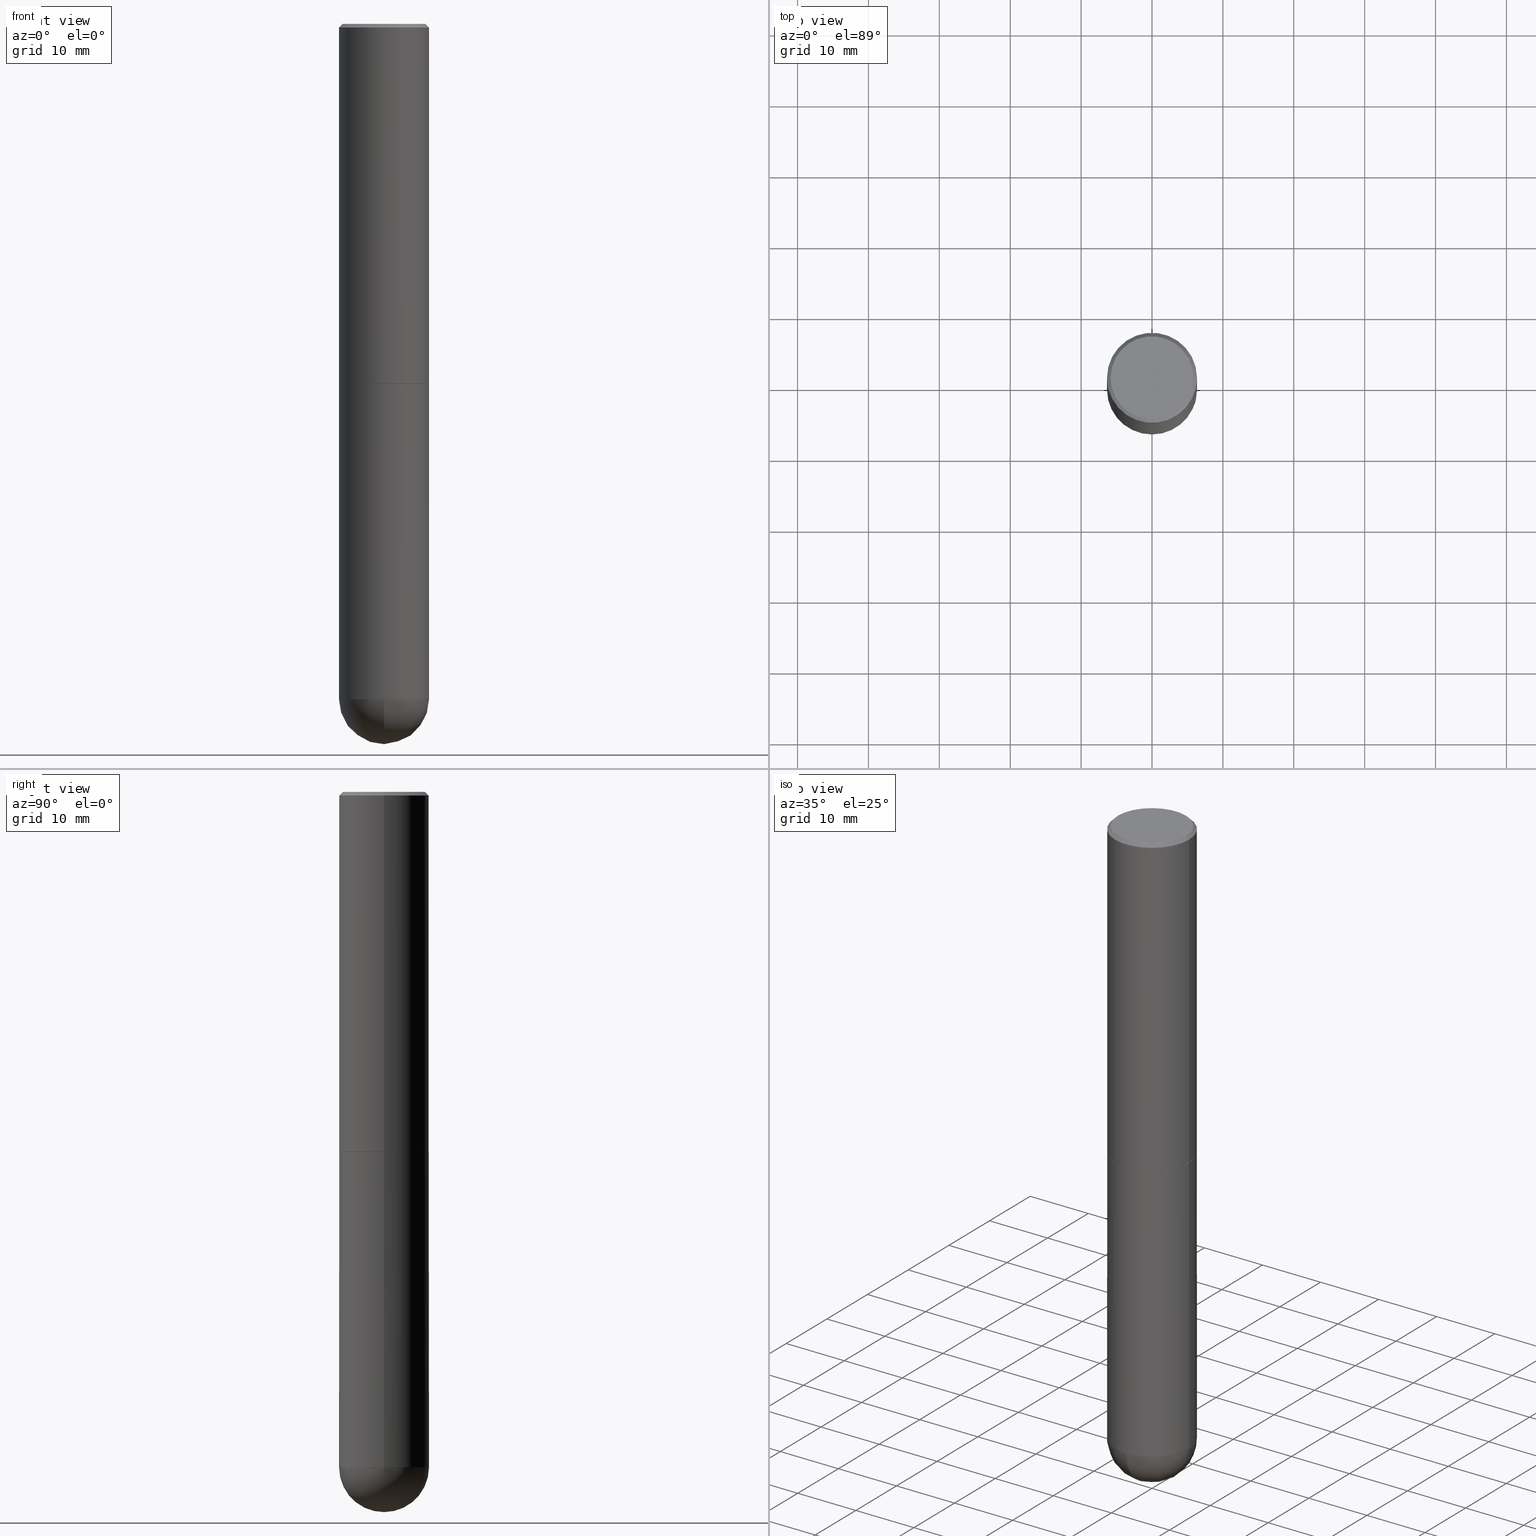
[diagram: canonical four-view strip — front | top / right | iso, engineering-drawing reading convention]
A machine part, canonical four-view strip (front | top / right | iso — engineering-drawing reading convention). The complete STEP part file that produces these views, byte-faithful:
ISO-10303-21;
HEADER;
FILE_DESCRIPTION (( 'STEP AP203' ),
    '1' );
FILE_NAME ('34982.STEP',
    '2024-02-21T18:41:01',
    ( '' ),
    ( '' ),
    'SwSTEP 2.0',
    'SolidWorks 2023',
    '' );
FILE_SCHEMA (( 'CONFIG_CONTROL_DESIGN' ));
ENDSEC;

DATA;
#1 = DIRECTION ( 'NONE',  ( 1.000000000000000000, 0.000000000000000000, 0.000000000000000000 ) ) ;
#2 = PLANE ( 'NONE',  #248 ) ;
#3 = VERTEX_POINT ( 'NONE', #73 ) ;
#4 = DIRECTION ( 'NONE',  ( 1.000000000000000000, -6.982962677686262766E-15, 0.000000000000000000 ) ) ;
#5 = AXIS2_PLACEMENT_3D ( 'NONE', #49, #144, #264 ) ;
#6 = CIRCLE ( 'NONE', #279, 0.2299999999999999267 ) ;
#7 = SPHERICAL_SURFACE ( 'NONE', #397, 0.2500000000000001110 ) ;
#8 = DIRECTION ( 'NONE',  ( -1.000000000000000000, 6.982962677686266711E-15, 0.000000000000000000 ) ) ;
#9 = ORIENTED_EDGE ( 'NONE', *, *, #116, .T. ) ;
#10 = FACE_OUTER_BOUND ( 'NONE', #189, .T. ) ;
#11 = ORIENTED_EDGE ( 'NONE', *, *, #102, .F. ) ;
#12 = VECTOR ( 'NONE', #84, 39.37007874015748143 ) ;
#13 = DIRECTION ( 'NONE',  ( 1.000000000000000000, -6.982962677686267499E-15, 4.876176775795936353E-29 ) ) ;
#14 = DIRECTION ( 'NONE',  ( 6.982962677686266711E-15, 1.000000000000000000, 0.000000000000000000 ) ) ;
#15 = PERSON_AND_ORGANIZATION ( #230, #252 ) ;
#16 = AXIS2_PLACEMENT_3D ( 'NONE', #198, #130, #254 ) ;
#17 = UNCERTAINTY_MEASURE_WITH_UNIT (LENGTH_MEASURE( 1.000000000000000082E-05 ), #183, 'distance_accuracy_value', 'NONE');
#18 = CARTESIAN_POINT ( 'NONE',  ( 0.000000000000000000, 0.000000000000000000, 0.000000000000000000 ) ) ;
#19 = EDGE_LOOP ( 'NONE', ( #222, #368, #40, #385 ) ) ;
#20 = CC_DESIGN_PERSON_AND_ORGANIZATION_ASSIGNMENT ( #262, #236, ( #56 ) ) ;
#21 = EDGE_CURVE ( 'NONE', #152, #410, #231, .T. ) ;
#22 = AXIS2_PLACEMENT_3D ( 'NONE', #327, #392, #47 ) ;
#23 = PRODUCT_DEFINITION_FORMATION_WITH_SPECIFIED_SOURCE ( 'ANY', '', #87, .NOT_KNOWN. ) ;
#24 = ORIENTED_EDGE ( 'NONE', *, *, #253, .T. ) ;
#25 = FACE_OUTER_BOUND ( 'NONE', #381, .T. ) ;
#26 = EDGE_CURVE ( 'NONE', #75, #152, #296, .T. ) ;
#27 = CARTESIAN_POINT ( 'NONE',  ( 4.890937612370273194E-29, -6.982962677686291165E-15, -2.000000000000000000 ) ) ;
#28 = DIRECTION ( 'NONE',  ( 1.000000000000000000, -6.982962677686266711E-15, 0.000000000000000000 ) ) ;
#29 = DIRECTION ( 'NONE',  ( -2.445468806185136597E-29, 3.491481338843145583E-15, 1.000000000000000000 ) ) ;
#30 = APPLICATION_PROTOCOL_DEFINITION ( 'international standard', 'config_control_design', 1994, #382 ) ;
#31 = CYLINDRICAL_SURFACE ( 'NONE', #5, 0.2500000000000000000 ) ;
#32 = FACE_OUTER_BOUND ( 'NONE', #281, .T. ) ;
#33 = ORIENTED_EDGE ( 'NONE', *, *, #146, .F. ) ;
#34 = ADVANCED_FACE ( 'NONE', ( #109 ), #77, .F. ) ;
#35 = FACE_OUTER_BOUND ( 'NONE', #374, .T. ) ;
#36 = CARTESIAN_POINT ( 'NONE',  ( 4.890937612370272633E-29, -6.982962677686290376E-15, -1.999999999999999778 ) ) ;
#37 = SHAPE_DEFINITION_REPRESENTATION ( #89, #286 ) ;
#38 = DIRECTION ( 'NONE',  ( 1.000000000000000000, -6.982962677686266711E-15, 0.000000000000000000 ) ) ;
#39 = COORDINATED_UNIVERSAL_TIME_OFFSET ( 5, 0, .BEHIND. ) ;
#40 = ORIENTED_EDGE ( 'NONE', *, *, #273, .T. ) ;
#41 = DIRECTION ( 'NONE',  ( 2.438088387897960049E-29, -3.491481338843145188E-15, -1.000000000000000000 ) ) ;
#42 = DIRECTION ( 'NONE',  ( 1.000000000000000000, -6.982962677686266711E-15, 0.000000000000000000 ) ) ;
#43 = DIRECTION ( 'NONE',  ( -2.445468806185136597E-29, 3.491481338843145583E-15, 1.000000000000000000 ) ) ;
#44 = MECHANICAL_CONTEXT ( 'NONE', #124, 'mechanical' ) ;
#45 = DIRECTION ( 'NONE',  ( -2.445468806185136597E-29, 3.491481338843145583E-15, 1.000000000000000000 ) ) ;
#46 = CARTESIAN_POINT ( 'NONE',  ( 8.839388245280375991E-29, -1.356723738880184771E-14, -3.750000000000000000 ) ) ;
#47 = DIRECTION ( 'NONE',  ( 1.000000000000000000, -6.982962677686262766E-15, 0.000000000000000000 ) ) ;
#48 = VERTEX_POINT ( 'NONE', #167 ) ;
#49 = CARTESIAN_POINT ( 'NONE',  ( 0.000000000000000000, 0.000000000000000000, 0.000000000000000000 ) ) ;
#50 = EDGE_LOOP ( 'NONE', ( #138, #347, #105, #303 ) ) ;
#51 = DIRECTION ( 'NONE',  ( 1.000000000000000000, -6.982962677686265922E-15, 4.883557194083112340E-29 ) ) ;
#52 = CONICAL_SURFACE ( 'NONE', #101, 0.2489999999999999991, 0.7853981633976873100 ) ;
#53 = AXIS2_PLACEMENT_3D ( 'NONE', #70, #29, #243 ) ;
#54 = DIRECTION ( 'NONE',  ( 0.7071067811867165487, -2.468850131084027659E-15, 0.7071067811863784858 ) ) ;
#55 = AXIS2_PLACEMENT_3D ( 'NONE', #140, #43, #4 ) ;
#56 = SECURITY_CLASSIFICATION ( '', '', #228 ) ;
#57 = ORIENTED_EDGE ( 'NONE', *, *, #253, .F. ) ;
#58 = LINE ( 'NONE', #117, #131 ) ;
#59 = PERSON_AND_ORGANIZATION ( #230, #252 ) ;
#60 = DIRECTION ( 'NONE',  ( 6.982962677686265922E-15, 1.000000000000000000, -4.370956789862818783E-15 ) ) ;
#61 = CC_DESIGN_SECURITY_CLASSIFICATION ( #56, ( #23 ) ) ;
#62 = PERSON_AND_ORGANIZATION_ROLE ( 'creator' ) ;
#63 = ORIENTED_EDGE ( 'NONE', *, *, #356, .T. ) ;
#64 = COORDINATED_UNIVERSAL_TIME_OFFSET ( 5, 0, .BEHIND. ) ;
#65 = ADVANCED_FACE ( 'NONE', ( #108 ), #370, .T. ) ;
#66 = APPROVAL_STATUS ( 'not_yet_approved' ) ;
#67 = DIRECTION ( 'NONE',  ( -2.445468806185136597E-29, 3.491481338843145583E-15, 1.000000000000000000 ) ) ;
#68 = ORIENTED_EDGE ( 'NONE', *, *, #205, .T. ) ;
#69 = AXIS2_PLACEMENT_3D ( 'NONE', #132, #256, #351 ) ;
#70 = CARTESIAN_POINT ( 'NONE',  ( 4.888492143564087591E-29, -6.979471196347447369E-15, -1.998999999999999888 ) ) ;
#71 = LINE ( 'NONE', #163, #210 ) ;
#72 =( NAMED_UNIT ( * ) PLANE_ANGLE_UNIT ( ) SI_UNIT ( $, .RADIAN. ) );
#73 = CARTESIAN_POINT ( 'NONE',  ( -0.2500000000000000000, -8.261652009773794219E-15, -2.000000000000000000 ) ) ;
#74 = CARTESIAN_POINT ( 'NONE',  ( 4.888492143564087591E-29, -6.979471196347447369E-15, -1.998999999999999888 ) ) ;
#75 = VERTEX_POINT ( 'NONE', #200 ) ;
#76 = DIRECTION ( 'NONE',  ( 1.000000000000000000, -6.982962677686262766E-15, 0.000000000000000000 ) ) ;
#77 = PLANE ( 'NONE',  #162 ) ;
#78 = AXIS2_PLACEMENT_3D ( 'NONE', #27, #411, #344 ) ;
#79 = VERTEX_POINT ( 'NONE', #164 ) ;
#80 = CARTESIAN_POINT ( 'NONE',  ( 0.2500000000000000000, -8.728703347107857054E-15, -2.000000000000000000 ) ) ;
#81 = CC_DESIGN_APPROVAL ( #114, ( #56 ) ) ;
#82 =( LENGTH_UNIT ( ) NAMED_UNIT ( * ) SI_UNIT ( $, .METRE. ) );
#83 = ORIENTED_EDGE ( 'NONE', *, *, #90, .T. ) ;
#84 = DIRECTION ( 'NONE',  ( -2.445468806185136877E-29, 3.491481338843145188E-15, 1.000000000000000000 ) ) ;
#85 = CIRCLE ( 'NONE', #22, 0.2500000000000000000 ) ;
#86 = APPROVAL_PERSON_ORGANIZATION ( #318, #180, #121 ) ;
#87 = PRODUCT ( '34982', '34982', '', ( #44 ) ) ;
#88 = FACE_OUTER_BOUND ( 'NONE', #294, .T. ) ;
#89 = PRODUCT_DEFINITION_SHAPE ( 'NONE', 'NONE',  #276 ) ;
#90 = EDGE_CURVE ( 'NONE', #352, #48, #313, .T. ) ;
#91 = COORDINATED_UNIVERSAL_TIME_OFFSET ( 5, 0, .BEHIND. ) ;
#92 =( GEOMETRIC_REPRESENTATION_CONTEXT ( 3 ) GLOBAL_UNCERTAINTY_ASSIGNED_CONTEXT ( ( #17 ) ) GLOBAL_UNIT_ASSIGNED_CONTEXT ( ( #183, #72, #257 ) ) REPRESENTATION_CONTEXT ( 'NONE', 'WORKASPACE' ) );
#93 = DIRECTION ( 'NONE',  ( 2.445468806185136597E-29, -3.491481338843145583E-15, -1.000000000000000000 ) ) ;
#94 = CC_DESIGN_PERSON_AND_ORGANIZATION_ASSIGNMENT ( #373, #197, ( #23 ) ) ;
#95 = CARTESIAN_POINT ( 'NONE',  ( 4.890937612370273194E-29, -6.982962677686291165E-15, -2.000000000000000000 ) ) ;
#96 = CYLINDRICAL_SURFACE ( 'NONE', #359, 0.2500000000000000000 ) ;
#97 = EDGE_LOOP ( 'NONE', ( #33, #217, #300, #388 ) ) ;
#98 = DIRECTION ( 'NONE',  ( 6.982962677686265922E-15, 1.000000000000000000, -4.370956789862818783E-15 ) ) ;
#99 = VECTOR ( 'NONE', #54, 39.37007874015748143 ) ;
#100 = ORIENTED_EDGE ( 'NONE', *, *, #204, .F. ) ;
#101 = AXIS2_PLACEMENT_3D ( 'NONE', #384, #325, #38 ) ;
#102 = EDGE_CURVE ( 'NONE', #213, #352, #244, .T. ) ;
#103 = CARTESIAN_POINT ( 'NONE',  ( 0.2299999999999999267, -1.681434332853598617E-15, 5.122214988121642930E-17 ) ) ;
#104 = CARTESIAN_POINT ( 'NONE',  ( 0.000000000000000000, 0.000000000000000000, 0.000000000000000000 ) ) ;
#105 = ORIENTED_EDGE ( 'NONE', *, *, #26, .T. ) ;
#106 = DIRECTION ( 'NONE',  ( -2.445468806185136597E-29, 3.491481338843145583E-15, 1.000000000000000000 ) ) ;
#107 = CC_DESIGN_PERSON_AND_ORGANIZATION_ASSIGNMENT ( #160, #379, ( #276 ) ) ;
#108 = FACE_OUTER_BOUND ( 'NONE', #97, .T. ) ;
#109 = FACE_OUTER_BOUND ( 'NONE', #211, .T. ) ;
#110 = DIRECTION ( 'NONE',  ( 0.7071067811865466846, -7.319954787623252890E-15, -0.7071067811865483499 ) ) ;
#111 = DIRECTION ( 'NONE',  ( -2.445468806185136597E-29, 3.491481338843145583E-15, 1.000000000000000000 ) ) ;
#112 = VERTEX_POINT ( 'NONE', #196 ) ;
#113 = LOCAL_TIME ( 13, 41, 1.000000000000000000, #407 ) ;
#114 = APPROVAL ( #147, 'UNSPECIFIED' ) ;
#115 = DIRECTION ( 'NONE',  ( 1.000000000000000000, -6.982962677686262766E-15, 0.000000000000000000 ) ) ;
#116 = EDGE_CURVE ( 'NONE', #112, #410, #71, .T. ) ;
#117 = CARTESIAN_POINT ( 'NONE',  ( -0.2500000000000000000, 1.675911042644703577E-15, -0.02000000000000005593 ) ) ;
#118 = CONICAL_SURFACE ( 'NONE', #274, 0.2489999999999999991, 0.7853981633976873100 ) ;
#119 = DIRECTION ( 'NONE',  ( -2.445468806185136597E-29, 3.491481338843145583E-15, 1.000000000000000000 ) ) ;
#120 = CARTESIAN_POINT ( 'NONE',  ( 0.2500000000000000000, -1.784954126219746189E-15, -0.02000000000000005593 ) ) ;
#121 = APPROVAL_ROLE ( '' ) ;
#122 = FACE_OUTER_BOUND ( 'NONE', #50, .T. ) ;
#123 = APPROVAL_PERSON_ORGANIZATION ( #15, #114, #148 ) ;
#124 = APPLICATION_CONTEXT ( 'configuration controlled 3d designs of mechanical parts and assemblies' ) ;
#125 = MANIFOLD_SOLID_BREP ( 'Body-Move/Copy2[2]', #145 ) ;
#126 = ORIENTED_EDGE ( 'NONE', *, *, #128, .F. ) ;
#127 = FACE_OUTER_BOUND ( 'NONE', #378, .T. ) ;
#128 = EDGE_CURVE ( 'NONE', #241, #112, #271, .T. ) ;
#129 = CALENDAR_DATE ( 2024, 21, 2 ) ;
#130 = DIRECTION ( 'NONE',  ( -2.445468806185136597E-29, 3.491481338843145583E-15, 1.000000000000000000 ) ) ;
#131 = VECTOR ( 'NONE', #350, 39.37007874015748143 ) ;
#132 = CARTESIAN_POINT ( 'NONE',  ( -1.252621697202263706E-45, 1.788411804456536750E-31, 5.122214988120493535E-17 ) ) ;
#133 = PERSON_AND_ORGANIZATION ( #230, #252 ) ;
#134 = ORIENTED_EDGE ( 'NONE', *, *, #339, .T. ) ;
#135 = DATE_AND_TIME ( #399, #113 ) ;
#136 = ORIENTED_EDGE ( 'NONE', *, *, #171, .F. ) ;
#137 = CARTESIAN_POINT ( 'NONE',  ( 0.2489999999999999991, -8.721720384430171040E-15, -1.999999999999999778 ) ) ;
#138 = ORIENTED_EDGE ( 'NONE', *, *, #116, .F. ) ;
#139 = VECTOR ( 'NONE', #314, 39.37007874015748143 ) ;
#140 = CARTESIAN_POINT ( 'NONE',  ( 9.170508023194262238E-29, -1.309305502066179741E-14, -3.750000000000000000 ) ) ;
#141 = VERTEX_POINT ( 'NONE', #412 ) ;
#142 = CARTESIAN_POINT ( 'NONE',  ( 0.2500000000000000000, -1.784954126219746189E-15, -0.02000000000000005593 ) ) ;
#143 = CARTESIAN_POINT ( 'NONE',  ( 4.890937612370273194E-29, -6.982962677686291165E-15, -2.000000000000000000 ) ) ;
#144 = DIRECTION ( 'NONE',  ( -2.445468806185136597E-29, 3.491481338843145583E-15, 1.000000000000000000 ) ) ;
#145 = CLOSED_SHELL ( 'NONE', ( #277, #330, #65, #389, #409, #151, #34, #247 ) ) ;
#146 = EDGE_CURVE ( 'NONE', #342, #141, #331, .T. ) ;
#147 = APPROVAL_STATUS ( 'not_yet_approved' ) ;
#148 = APPROVAL_ROLE ( '' ) ;
#149 = ADVANCED_FACE ( 'NONE', ( #261 ), #96, .T. ) ;
#150 = CIRCLE ( 'NONE', #78, 0.2500000000000000000 ) ;
#151 = ADVANCED_FACE ( 'NONE', ( #32 ), #52, .T. ) ;
#152 = VERTEX_POINT ( 'NONE', #120 ) ;
#153 = ORIENTED_EDGE ( 'NONE', *, *, #154, .F. ) ;
#154 = EDGE_CURVE ( 'NONE', #79, #213, #173, .T. ) ;
#155 = APPROVAL_ROLE ( '' ) ;
#156 = CARTESIAN_POINT ( 'NONE',  ( -1.776356839400160732E-15, -0.2500000000000133782, -3.749999999999999112 ) ) ;
#157 = AXIS2_PLACEMENT_3D ( 'NONE', #46, #270, #220 ) ;
#158 = DIRECTION ( 'NONE',  ( 1.000000000000000000, -6.982962677686267499E-15, 4.876176775795936353E-29 ) ) ;
#159 = APPROVAL ( #406, 'UNSPECIFIED' ) ;
#160 = PERSON_AND_ORGANIZATION ( #230, #252 ) ;
#161 = CARTESIAN_POINT ( 'NONE',  ( 4.890937612370272633E-29, -6.982962677686290376E-15, -1.999999999999999778 ) ) ;
#162 = AXIS2_PLACEMENT_3D ( 'NONE', #143, #291, #320 ) ;
#163 = CARTESIAN_POINT ( 'NONE',  ( -0.2500000000000001110, 1.776356839400251254E-15, -1.229733772563727146E-29 ) ) ;
#164 = CARTESIAN_POINT ( 'NONE',  ( -0.2500000000000000000, -8.261652009773795797E-15, -3.750000000000000000 ) ) ;
#165 = CARTESIAN_POINT ( 'NONE',  ( 1.606081415867840870E-15, 0.2299999999999999267, -7.774296329933208332E-16 ) ) ;
#166 = DIRECTION ( 'NONE',  ( -2.445468806185136597E-29, 3.491481338843145583E-15, 1.000000000000000000 ) ) ;
#167 = CARTESIAN_POINT ( 'NONE',  ( 1.745740669421657002E-15, 0.2499999999999867606, -3.750000000000001332 ) ) ;
#168 = CALENDAR_DATE ( 2024, 21, 2 ) ;
#169 = DIRECTION ( 'NONE',  ( 1.000000000000000000, -6.982962677686266711E-15, 0.000000000000000000 ) ) ;
#170 = DIRECTION ( 'NONE',  ( -1.000000000000000000, 6.982962677686265922E-15, -4.876176775795935793E-29 ) ) ;
#171 = EDGE_CURVE ( 'NONE', #258, #48, #393, .T. ) ;
#172 = LINE ( 'NONE', #395, #139 ) ;
#173 = CIRCLE ( 'NONE', #341, 0.2500000000000000000 ) ;
#174 = ORIENTED_EDGE ( 'NONE', *, *, #232, .T. ) ;
#175 = DIRECTION ( 'NONE',  ( -2.445468806185136597E-29, 3.491481338843145583E-15, 1.000000000000000000 ) ) ;
#176 = ORIENTED_EDGE ( 'NONE', *, *, #171, .T. ) ;
#177 = PLANE ( 'NONE',  #223 ) ;
#178 = AXIS2_PLACEMENT_3D ( 'NONE', #336, #45, #169 ) ;
#179 = LOCAL_TIME ( 13, 41, 1.000000000000000000, #91 ) ;
#180 = APPROVAL ( #66, 'UNSPECIFIED' ) ;
#181 = ADVANCED_FACE ( 'NONE', ( #25 ), #402, .T. ) ;
#182 = AXIS2_PLACEMENT_3D ( 'NONE', #95, #175, #324 ) ;
#183 =( CONVERSION_BASED_UNIT ( 'INCH', #216 ) LENGTH_UNIT ( ) NAMED_UNIT ( #226 ) );
#184 = ORIENTED_EDGE ( 'NONE', *, *, #366, .F. ) ;
#185 = EDGE_CURVE ( 'NONE', #323, #75, #284, .T. ) ;
#186 = DIRECTION ( 'NONE',  ( -1.000000000000000000, 6.982962677686266711E-15, 0.000000000000000000 ) ) ;
#187 = DATE_TIME_ROLE ( 'creation_date' ) ;
#188 = CARTESIAN_POINT ( 'NONE',  ( 0.2489999999999999991, -8.721720384430171040E-15, -1.999999999999999778 ) ) ;
#189 = EDGE_LOOP ( 'NONE', ( #63, #9, #245, #285 ) ) ;
#190 = CLOSED_SHELL ( 'NONE', ( #149, #332, #181, #319, #288 ) ) ;
#191 = CARTESIAN_POINT ( 'NONE',  ( 4.890937612370287172E-31, -6.982962677686310098E-17, -0.02000000000000005593 ) ) ;
#192 = ORIENTED_EDGE ( 'NONE', *, *, #362, .T. ) ;
#193 = CALENDAR_DATE ( 2024, 21, 2 ) ;
#194 = CC_DESIGN_DATE_AND_TIME_ASSIGNMENT ( #295, #355, ( #56 ) ) ;
#195 = PERSON_AND_ORGANIZATION_ROLE ( 'design_owner' ) ;
#196 = CARTESIAN_POINT ( 'NONE',  ( -0.2500000000000002220, -1.748293572161902502E-15, -1.998999999999999888 ) ) ;
#197 = PERSON_AND_ORGANIZATION_ROLE ( 'design_supplier' ) ;
#198 = CARTESIAN_POINT ( 'NONE',  ( 4.890937612370287172E-31, -6.982962677686310098E-17, -0.02000000000000005593 ) ) ;
#199 = VECTOR ( 'NONE', #380, 39.37007874015748143 ) ;
#200 = CARTESIAN_POINT ( 'NONE',  ( 0.2500000000000002776, -8.725211865769015625E-15, -1.998999999999999888 ) ) ;
#201 = ORIENTED_EDGE ( 'NONE', *, *, #401, .T. ) ;
#202 = APPROVAL_DATE_TIME ( #135, #114 ) ;
#203 = CARTESIAN_POINT ( 'NONE',  ( -0.2489999999999999991, -5.213711265643640920E-15, -1.999999999999999778 ) ) ;
#204 = EDGE_CURVE ( 'NONE', #79, #3, #282, .T. ) ;
#205 = EDGE_CURVE ( 'NONE', #375, #3, #150, .T. ) ;
#206 = DIRECTION ( 'NONE',  ( -2.445468806185136597E-29, 3.491481338843145583E-15, 1.000000000000000000 ) ) ;
#207 = APPLICATION_PROTOCOL_DEFINITION ( 'international standard', 'config_control_design', 1994, #124 ) ;
#208 = ORIENTED_EDGE ( 'NONE', *, *, #259, .F. ) ;
#209 = CARTESIAN_POINT ( 'NONE',  ( 9.461445025441403338E-29, -1.442479963852329389E-14, -4.000000000000000888 ) ) ;
#210 = VECTOR ( 'NONE', #334, 39.37007874015748143 ) ;
#211 = EDGE_LOOP ( 'NONE', ( #361, #57 ) ) ;
#212 = CARTESIAN_POINT ( 'NONE',  ( 9.170508023194262238E-29, -1.309305502066179741E-14, -3.750000000000000000 ) ) ;
#213 = VERTEX_POINT ( 'NONE', #156 ) ;
#214 = AXIS2_PLACEMENT_3D ( 'NONE', #221, #346, #60 ) ;
#215 = CIRCLE ( 'NONE', #53, 0.2500000000000002776 ) ;
#216 = LENGTH_MEASURE_WITH_UNIT ( LENGTH_MEASURE( 0.02539999999999999897 ), #82 );
#217 = ORIENTED_EDGE ( 'NONE', *, *, #304, .T. ) ;
#218 = CIRCLE ( 'NONE', #182, 0.2500000000000000000 ) ;
#219 = AXIS2_PLACEMENT_3D ( 'NONE', #18, #343, #158 ) ;
#220 = DIRECTION ( 'NONE',  ( -7.105427357601001859E-15, -1.000000000000000000, 0.000000000000000000 ) ) ;
#221 = CARTESIAN_POINT ( 'NONE',  ( 8.839388245280375991E-29, -1.356723738880184771E-14, -3.750000000000000000 ) ) ;
#222 = ORIENTED_EDGE ( 'NONE', *, *, #304, .F. ) ;
#223 = AXIS2_PLACEMENT_3D ( 'NONE', #165, #41, #170 ) ;
#224 = AXIS2_PLACEMENT_3D ( 'NONE', #191, #93, #186 ) ;
#225 = EDGE_CURVE ( 'NONE', #410, #152, #376, .T. ) ;
#226 = DIMENSIONAL_EXPONENTS ( 1.000000000000000000, 0.000000000000000000, 0.000000000000000000, 0.000000000000000000, 0.000000000000000000, 0.000000000000000000, 0.000000000000000000 ) ;
#227 = CARTESIAN_POINT ( 'NONE',  ( 0.000000000000000000, 0.000000000000000000, 0.000000000000000000 ) ) ;
#228 = SECURITY_CLASSIFICATION_LEVEL ( 'unclassified' ) ;
#229 = ORIENTED_EDGE ( 'NONE', *, *, #185, .T. ) ;
#230 = PERSON ( 'UNSPECIFIED', 'UNSPECIFIED', 'UNSPECIFIED', ('UNSPECIFIED'), ('UNSPECIFIED'), ('UNSPECIFIED') ) ;
#231 = CIRCLE ( 'NONE', #178, 0.2500000000000000000 ) ;
#232 = EDGE_CURVE ( 'NONE', #3, #375, #218, .T. ) ;
#233 = DESIGN_CONTEXT ( 'detailed design', #382, 'design' ) ;
#234 = CARTESIAN_POINT ( 'NONE',  ( 9.170508023194262238E-29, -1.309305502066179741E-14, -3.750000000000000000 ) ) ;
#235 = LOCAL_TIME ( 13, 41, 1.000000000000000000, #39 ) ;
#236 = PERSON_AND_ORGANIZATION_ROLE ( 'classification_officer' ) ;
#237 = CARTESIAN_POINT ( 'NONE',  ( 0.000000000000000000, 0.000000000000000000, 0.000000000000000000 ) ) ;
#238 = CARTESIAN_POINT ( 'NONE',  ( 4.890937612370287172E-31, -6.982962677686310098E-17, -0.02000000000000005593 ) ) ;
#239 = DIRECTION ( 'NONE',  ( 1.000000000000000000, -6.982962677686266711E-15, 0.000000000000000000 ) ) ;
#240 = LINE ( 'NONE', #142, #265 ) ;
#241 = VERTEX_POINT ( 'NONE', #357 ) ;
#242 = FACE_OUTER_BOUND ( 'NONE', #289, .T. ) ;
#243 = DIRECTION ( 'NONE',  ( 1.000000000000000000, -6.982962677686266711E-15, 0.000000000000000000 ) ) ;
#244 = CIRCLE ( 'NONE', #55, 0.2500000000000000000 ) ;
#245 = ORIENTED_EDGE ( 'NONE', *, *, #21, .F. ) ;
#246 = AXIS2_PLACEMENT_3D ( 'NONE', #36, #166, #387 ) ;
#247 = ADVANCED_FACE ( 'NONE', ( #35 ), #177, .F. ) ;
#248 = AXIS2_PLACEMENT_3D ( 'NONE', #363, #337, #302 ) ;
#249 = CC_DESIGN_APPROVAL ( #180, ( #276 ) ) ;
#250 = CC_DESIGN_PERSON_AND_ORGANIZATION_ASSIGNMENT ( #59, #62, ( #23 ) ) ;
#251 = CYLINDRICAL_SURFACE ( 'NONE', #219, 0.2500000000000001110 ) ;
#252 = ORGANIZATION ( 'UNSPECIFIED', 'UNSPECIFIED', '' ) ;
#253 = EDGE_CURVE ( 'NONE', #241, #323, #340, .T. ) ;
#254 = DIRECTION ( 'NONE',  ( 1.000000000000000000, -6.982962677686266711E-15, 0.000000000000000000 ) ) ;
#255 = AXIS2_PLACEMENT_3D ( 'NONE', #104, #321, #1 ) ;
#256 = DIRECTION ( 'NONE',  ( -2.445468806185136597E-29, 3.491481338843145583E-15, 1.000000000000000000 ) ) ;
#257 =( NAMED_UNIT ( * ) SI_UNIT ( $, .STERADIAN. ) SOLID_ANGLE_UNIT ( ) );
#258 = VERTEX_POINT ( 'NONE', #209 ) ;
#259 = EDGE_CURVE ( 'NONE', #258, #213, #307, .T. ) ;
#260 = FACE_OUTER_BOUND ( 'NONE', #312, .T. ) ;
#261 = FACE_OUTER_BOUND ( 'NONE', #283, .T. ) ;
#262 = PERSON_AND_ORGANIZATION ( #230, #252 ) ;
#263 = ORIENTED_EDGE ( 'NONE', *, *, #154, .T. ) ;
#264 = DIRECTION ( 'NONE',  ( 1.000000000000000000, -6.982962677686266711E-15, 4.876176775795935793E-29 ) ) ;
#265 = VECTOR ( 'NONE', #110, 39.37007874015748143 ) ;
#266 = LOCAL_TIME ( 13, 41, 1.000000000000000000, #301 ) ;
#267 = ORIENTED_EDGE ( 'NONE', *, *, #259, .T. ) ;
#268 = CARTESIAN_POINT ( 'NONE',  ( 4.890937612370272633E-29, -6.982962677686290376E-15, -1.999999999999999778 ) ) ;
#269 = CARTESIAN_POINT ( 'NONE',  ( 0.2500000000000001110, -1.745740669421567664E-15, 1.219044193948984649E-29 ) ) ;
#270 = DIRECTION ( 'NONE',  ( -1.000000000000000000, 7.105427357601001070E-15, -4.926315508542082329E-29 ) ) ;
#271 = LINE ( 'NONE', #203, #199 ) ;
#272 = ORIENTED_EDGE ( 'NONE', *, *, #102, .T. ) ;
#273 = EDGE_CURVE ( 'NONE', #141, #410, #58, .T. ) ;
#274 = AXIS2_PLACEMENT_3D ( 'NONE', #161, #287, #28 ) ;
#275 = CALENDAR_DATE ( 2024, 21, 2 ) ;
#276 = PRODUCT_DEFINITION ( 'UNKNOWN', '', #23, #233 ) ;
#277 = ADVANCED_FACE ( 'NONE', ( #127 ), #118, .T. ) ;
#278 = AXIS2_PLACEMENT_3D ( 'NONE', #338, #51, #14 ) ;
#279 = AXIS2_PLACEMENT_3D ( 'NONE', #367, #310, #309 ) ;
#280 = APPROVAL_DATE_TIME ( #316, #159 ) ;
#281 = EDGE_LOOP ( 'NONE', ( #126, #24, #229, #184 ) ) ;
#282 = LINE ( 'NONE', #369, #12 ) ;
#283 = EDGE_LOOP ( 'NONE', ( #292, #405, #335, #329, #83 ) ) ;
#284 = LINE ( 'NONE', #188, #99 ) ;
#285 = ORIENTED_EDGE ( 'NONE', *, *, #26, .F. ) ;
#286 = ADVANCED_BREP_SHAPE_REPRESENTATION ( '34982', ( #396, #125, #255 ), #92 ) ;
#287 = DIRECTION ( 'NONE',  ( -2.445468806185136597E-29, 3.491481338843145583E-15, 1.000000000000000000 ) ) ;
#288 = ADVANCED_FACE ( 'NONE', ( #88 ), #31, .T. ) ;
#289 = EDGE_LOOP ( 'NONE', ( #68, #174 ) ) ;
#290 = CIRCLE ( 'NONE', #246, 0.2489999999999999991 ) ;
#291 = DIRECTION ( 'NONE',  ( -2.438088387897960049E-29, 3.491481338843145188E-15, 1.000000000000000000 ) ) ;
#292 = ORIENTED_EDGE ( 'NONE', *, *, #299, .T. ) ;
#293 = DIRECTION ( 'NONE',  ( 2.445468806185136597E-29, -3.491481338843145583E-15, -1.000000000000000000 ) ) ;
#294 = EDGE_LOOP ( 'NONE', ( #100, #263, #272, #192, #404 ) ) ;
#295 = DATE_AND_TIME ( #168, #235 ) ;
#296 = LINE ( 'NONE', #269, #348 ) ;
#297 = CYLINDRICAL_SURFACE ( 'NONE', #398, 0.2500000000000001110 ) ;
#298 = ORIENTED_EDGE ( 'NONE', *, *, #90, .F. ) ;
#299 = EDGE_CURVE ( 'NONE', #48, #79, #85, .T. ) ;
#300 = ORIENTED_EDGE ( 'NONE', *, *, #21, .T. ) ;
#301 = COORDINATED_UNIVERSAL_TIME_OFFSET ( 5, 0, .BEHIND. ) ;
#302 = DIRECTION ( 'NONE',  ( -1.000000000000000000, 6.982962677686265922E-15, -4.876176775795935793E-29 ) ) ;
#303 = ORIENTED_EDGE ( 'NONE', *, *, #225, .F. ) ;
#304 = EDGE_CURVE ( 'NONE', #342, #152, #240, .T. ) ;
#305 = CC_DESIGN_DATE_AND_TIME_ASSIGNMENT ( #372, #187, ( #276 ) ) ;
#306 = PRODUCT_RELATED_PRODUCT_CATEGORY ( 'detail', '', ( #87 ) ) ;
#307 = CIRCLE ( 'NONE', #157, 0.2500000000000001110 ) ;
#308 = AXIS2_PLACEMENT_3D ( 'NONE', #74, #206, #42 ) ;
#309 = DIRECTION ( 'NONE',  ( 1.000000000000000000, -6.982962677686267499E-15, 4.875813741439101456E-29 ) ) ;
#310 = DIRECTION ( 'NONE',  ( -2.445468806185136597E-29, 3.491481338843145583E-15, 1.000000000000000000 ) ) ;
#311 = PERSON_AND_ORGANIZATION ( #230, #252 ) ;
#312 = EDGE_LOOP ( 'NONE', ( #136, #267, #153, #391 ) ) ;
#313 = CIRCLE ( 'NONE', #386, 0.2500000000000000000 ) ;
#314 = DIRECTION ( 'NONE',  ( -2.445468806185136877E-29, 3.491481338843145188E-15, 1.000000000000000000 ) ) ;
#315 = ORIENTED_EDGE ( 'NONE', *, *, #185, .F. ) ;
#316 = DATE_AND_TIME ( #193, #371 ) ;
#317 = APPROVAL_DATE_TIME ( #349, #180 ) ;
#318 = PERSON_AND_ORGANIZATION ( #230, #252 ) ;
#319 = ADVANCED_FACE ( 'NONE', ( #242 ), #2, .F. ) ;
#320 = DIRECTION ( 'NONE',  ( 1.000000000000000000, -6.982962677686265922E-15, 4.876176775795935793E-29 ) ) ;
#321 = DIRECTION ( 'NONE',  ( 0.000000000000000000, 0.000000000000000000, 1.000000000000000000 ) ) ;
#322 = DIRECTION ( 'NONE',  ( 1.000000000000000000, -6.982962677686266711E-15, 4.876176775795935793E-29 ) ) ;
#323 = VERTEX_POINT ( 'NONE', #137 ) ;
#324 = DIRECTION ( 'NONE',  ( 1.000000000000000000, -6.982962677686266711E-15, 0.000000000000000000 ) ) ;
#325 = DIRECTION ( 'NONE',  ( -2.445468806185136597E-29, 3.491481338843145583E-15, 1.000000000000000000 ) ) ;
#326 = ORIENTED_EDGE ( 'NONE', *, *, #146, .T. ) ;
#327 = CARTESIAN_POINT ( 'NONE',  ( 9.170508023194262238E-29, -1.309305502066179741E-14, -3.750000000000000000 ) ) ;
#328 = CARTESIAN_POINT ( 'NONE',  ( 8.839388245280375991E-29, -1.356723738880184771E-14, -3.750000000000000000 ) ) ;
#329 = ORIENTED_EDGE ( 'NONE', *, *, #362, .F. ) ;
#330 = ADVANCED_FACE ( 'NONE', ( #10 ), #297, .T. ) ;
#331 = CIRCLE ( 'NONE', #69, 0.2299999999999999267 ) ;
#332 = ADVANCED_FACE ( 'NONE', ( #260 ), #7, .T. ) ;
#333 = APPROVAL_PERSON_ORGANIZATION ( #311, #159, #155 ) ;
#334 = DIRECTION ( 'NONE',  ( -2.445468806185136877E-29, 3.491481338843145188E-15, 1.000000000000000000 ) ) ;
#335 = ORIENTED_EDGE ( 'NONE', *, *, #205, .F. ) ;
#336 = CARTESIAN_POINT ( 'NONE',  ( 4.890937612370287172E-31, -6.982962677686310098E-17, -0.02000000000000005593 ) ) ;
#337 = DIRECTION ( 'NONE',  ( 2.438088387897960049E-29, -3.491481338843145188E-15, -1.000000000000000000 ) ) ;
#338 = CARTESIAN_POINT ( 'NONE',  ( 8.839388245280375991E-29, -1.356723738880184771E-14, -3.750000000000000000 ) ) ;
#339 = EDGE_CURVE ( 'NONE', #323, #241, #290, .T. ) ;
#340 = CIRCLE ( 'NONE', #364, 0.2489999999999999991 ) ;
#341 = AXIS2_PLACEMENT_3D ( 'NONE', #212, #119, #115 ) ;
#342 = VERTEX_POINT ( 'NONE', #103 ) ;
#343 = DIRECTION ( 'NONE',  ( -2.445468806185136597E-29, 3.491481338843145583E-15, 1.000000000000000000 ) ) ;
#344 = DIRECTION ( 'NONE',  ( 1.000000000000000000, -6.982962677686266711E-15, 0.000000000000000000 ) ) ;
#345 = CC_DESIGN_PERSON_AND_ORGANIZATION_ASSIGNMENT ( #133, #195, ( #87 ) ) ;
#346 = DIRECTION ( 'NONE',  ( -1.000000000000000000, 6.982962677686265922E-15, -4.883557194083113462E-29 ) ) ;
#347 = ORIENTED_EDGE ( 'NONE', *, *, #366, .T. ) ;
#348 = VECTOR ( 'NONE', #390, 39.37007874015748143 ) ;
#349 = DATE_AND_TIME ( #275, #266 ) ;
#350 = DIRECTION ( 'NONE',  ( -0.7071067811865466846, 2.468850131082247989E-15, -0.7071067811865483499 ) ) ;
#351 = DIRECTION ( 'NONE',  ( 1.000000000000000000, -6.982962677686267499E-15, 4.875813741439101456E-29 ) ) ;
#352 = VERTEX_POINT ( 'NONE', #354 ) ;
#353 = ORIENTED_EDGE ( 'NONE', *, *, #128, .T. ) ;
#354 = CARTESIAN_POINT ( 'NONE',  ( 0.2500000000000000000, -1.178374951859561294E-14, -3.750000000000000000 ) ) ;
#355 = DATE_TIME_ROLE ( 'classification_date' ) ;
#356 = EDGE_CURVE ( 'NONE', #75, #112, #377, .T. ) ;
#357 = CARTESIAN_POINT ( 'NONE',  ( -0.2489999999999999991, -5.208412811295417729E-15, -1.999999999999999778 ) ) ;
#358 = ORIENTED_EDGE ( 'NONE', *, *, #356, .F. ) ;
#359 = AXIS2_PLACEMENT_3D ( 'NONE', #227, #67, #322 ) ;
#360 = DIRECTION ( 'NONE',  ( -2.445468806185136597E-29, 3.491481338843145583E-15, 1.000000000000000000 ) ) ;
#361 = ORIENTED_EDGE ( 'NONE', *, *, #339, .F. ) ;
#362 = EDGE_CURVE ( 'NONE', #352, #375, #172, .T. ) ;
#363 = CARTESIAN_POINT ( 'NONE',  ( 1.745740669421615390E-15, 0.2499999999999930334, -2.000000000000000888 ) ) ;
#364 = AXIS2_PLACEMENT_3D ( 'NONE', #268, #106, #239 ) ;
#365 = CONICAL_SURFACE ( 'NONE', #224, 0.2500000000000000000, 0.7853981633974471688 ) ;
#366 = EDGE_CURVE ( 'NONE', #112, #75, #215, .T. ) ;
#367 = CARTESIAN_POINT ( 'NONE',  ( -1.252621697202263706E-45, 1.788411804456536750E-31, 5.122214988120493535E-17 ) ) ;
#368 = ORIENTED_EDGE ( 'NONE', *, *, #401, .F. ) ;
#369 = CARTESIAN_POINT ( 'NONE',  ( -0.2500000000000000000, 1.776356839400250465E-15, -1.229733772563726445E-29 ) ) ;
#370 = CONICAL_SURFACE ( 'NONE', #403, 0.2500000000000000000, 0.7853981633974471688 ) ;
#371 = LOCAL_TIME ( 13, 41, 1.000000000000000000, #64 ) ;
#372 = DATE_AND_TIME ( #129, #179 ) ;
#373 = PERSON_AND_ORGANIZATION ( #230, #252 ) ;
#374 = EDGE_LOOP ( 'NONE', ( #201, #326 ) ) ;
#375 = VERTEX_POINT ( 'NONE', #80 ) ;
#376 = CIRCLE ( 'NONE', #16, 0.2500000000000000000 ) ;
#377 = CIRCLE ( 'NONE', #308, 0.2500000000000002776 ) ;
#378 = EDGE_LOOP ( 'NONE', ( #134, #353, #358, #315 ) ) ;
#379 = PERSON_AND_ORGANIZATION_ROLE ( 'creator' ) ;
#380 = DIRECTION ( 'NONE',  ( -0.7071067811867165487, 7.493145998870964739E-15, 0.7071067811863784858 ) ) ;
#381 = EDGE_LOOP ( 'NONE', ( #208, #176, #298, #11 ) ) ;
#382 = APPLICATION_CONTEXT ( 'configuration controlled 3d designs of mechanical parts and assemblies' ) ;
#383 = DIRECTION ( 'NONE',  ( -1.000000000000000000, 6.982962677686265922E-15, -4.883557194083113462E-29 ) ) ;
#384 = CARTESIAN_POINT ( 'NONE',  ( 4.890937612370272633E-29, -6.982962677686290376E-15, -1.999999999999999778 ) ) ;
#385 = ORIENTED_EDGE ( 'NONE', *, *, #225, .T. ) ;
#386 = AXIS2_PLACEMENT_3D ( 'NONE', #234, #360, #76 ) ;
#387 = DIRECTION ( 'NONE',  ( 1.000000000000000000, -6.982962677686266711E-15, 0.000000000000000000 ) ) ;
#388 = ORIENTED_EDGE ( 'NONE', *, *, #273, .F. ) ;
#389 = ADVANCED_FACE ( 'NONE', ( #400 ), #365, .T. ) ;
#390 = DIRECTION ( 'NONE',  ( -2.445468806185136877E-29, 3.491481338843145188E-15, 1.000000000000000000 ) ) ;
#391 = ORIENTED_EDGE ( 'NONE', *, *, #299, .F. ) ;
#392 = DIRECTION ( 'NONE',  ( -2.445468806185136597E-29, 3.491481338843145583E-15, 1.000000000000000000 ) ) ;
#393 = CIRCLE ( 'NONE', #278, 0.2500000000000001110 ) ;
#394 = CC_DESIGN_APPROVAL ( #159, ( #23 ) ) ;
#395 = CARTESIAN_POINT ( 'NONE',  ( 0.2500000000000000000, -1.745740669421566678E-15, 1.219044193948983948E-29 ) ) ;
#396 = MANIFOLD_SOLID_BREP ( 'Body-Move/Copy2[1]', #190 ) ;
#397 = AXIS2_PLACEMENT_3D ( 'NONE', #328, #383, #98 ) ;
#398 = AXIS2_PLACEMENT_3D ( 'NONE', #237, #111, #13 ) ;
#399 = CALENDAR_DATE ( 2024, 21, 2 ) ;
#400 = FACE_OUTER_BOUND ( 'NONE', #19, .T. ) ;
#401 = EDGE_CURVE ( 'NONE', #141, #342, #6, .T. ) ;
#402 = SPHERICAL_SURFACE ( 'NONE', #214, 0.2500000000000001110 ) ;
#403 = AXIS2_PLACEMENT_3D ( 'NONE', #238, #293, #8 ) ;
#404 = ORIENTED_EDGE ( 'NONE', *, *, #232, .F. ) ;
#405 = ORIENTED_EDGE ( 'NONE', *, *, #204, .T. ) ;
#406 = APPROVAL_STATUS ( 'not_yet_approved' ) ;
#407 = COORDINATED_UNIVERSAL_TIME_OFFSET ( 5, 0, .BEHIND. ) ;
#408 = CARTESIAN_POINT ( 'NONE',  ( -0.2500000000000000000, 1.675911042644703577E-15, -0.02000000000000005593 ) ) ;
#409 = ADVANCED_FACE ( 'NONE', ( #122 ), #251, .T. ) ;
#410 = VERTEX_POINT ( 'NONE', #408 ) ;
#411 = DIRECTION ( 'NONE',  ( -2.445468806185136597E-29, 3.491481338843145583E-15, 1.000000000000000000 ) ) ;
#412 = CARTESIAN_POINT ( 'NONE',  ( -0.2299999999999999267, 1.640996229256272519E-15, 5.122214988119358314E-17 ) ) ;
ENDSEC;
END-ISO-10303-21;
